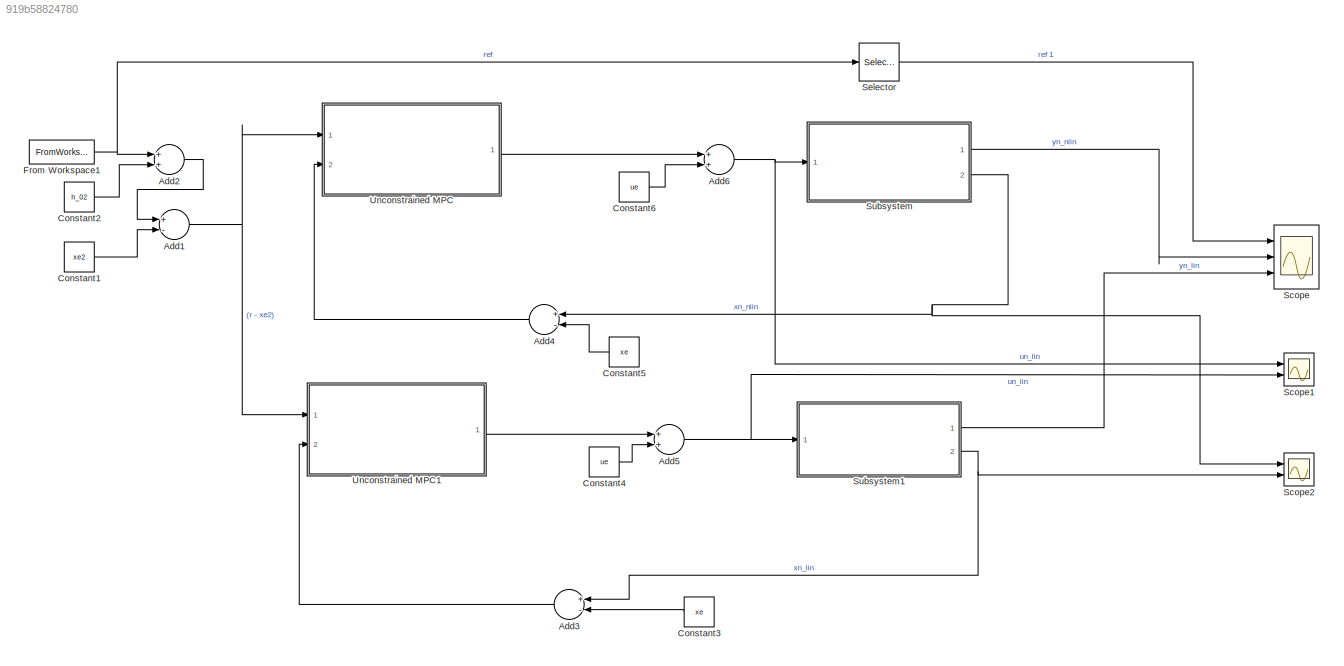
MODEL slx_919b58824780
KIND model
CONFIG AbsTol = auto
CONFIG EnableMultiTasking = off
CONFIG FixedStep = auto
CONFIG MaxStep = auto
CONFIG MinStep = auto
CONFIG RelTol = 1e-3
CONFIG SampleTimeConstraint = Unconstrained
CONFIG Solver = VariableStepAuto
CONFIG SolverName = VariableStepAuto
CONFIG StartTime = 0.0
CONFIG StopTime = time_end
BLOCK [Sum] Add1
  InputSameDT = off
  Inputs = +-
  OutDataTypeStr = Inherit: Inherit via internal rule
  Ports = [2, 1]
  SaturateOnIntegerOverflow = off
BLOCK [Sum] Add2
  InputSameDT = off
  OutDataTypeStr = Inherit: Inherit via internal rule
  Ports = [2, 1]
  SaturateOnIntegerOverflow = off
BLOCK [Sum] Add3
  InputSameDT = off
  Inputs = +-
  OutDataTypeStr = Inherit: Inherit via internal rule
  Ports = [2, 1]
  SaturateOnIntegerOverflow = off
BLOCK [Sum] Add4
  InputSameDT = off
  Inputs = +-
  OutDataTypeStr = Inherit: Inherit via internal rule
  Ports = [2, 1]
  SaturateOnIntegerOverflow = off
BLOCK [Sum] Add5
  InputSameDT = off
  OutDataTypeStr = Inherit: Inherit via internal rule
  Ports = [2, 1]
  SaturateOnIntegerOverflow = off
BLOCK [Sum] Add6
  InputSameDT = off
  OutDataTypeStr = Inherit: Inherit via internal rule
  Ports = [2, 1]
  SaturateOnIntegerOverflow = off
BLOCK [Constant] Constant1
  Value = xe2
BLOCK [Constant] Constant2
  Value = h_02
BLOCK [Constant] Constant3
  Value = xe
BLOCK [Constant] Constant4
  Value = ue
BLOCK [Constant] Constant5
  Value = xe
BLOCK [Constant] Constant6
  Value = ue
BLOCK [FromWorkspace] From Workspace1
  SampleTime = 0
  VariableName = r
  ZeroCross = on
BLOCK [Scope] Scope
  Floating = off
  NumInputPorts = 3
  Ports = [3]
  ScopeSpecificationString = Simulink.scopes.TimeScopeBlockCfg('CurrentConfiguration', extmgr.ConfigurationSet(extmgr.Configuration('Core','General UI',true),extmgr.Configuration('Core','Source UI',true),extmgr.Configuration('Sources','WiredSimulink',true),extmgr.Configuration('Visuals','Time Domain',true,'SerializedDisplays',{struct('MinYLimReal','-1.00053','MaxYLimReal','9.0048','YLabelReal','','MinYLimMag','0.00000','MaxYL...<+1439ch>
BLOCK [Scope] Scope1
  Floating = off
  NumInputPorts = 2
  Ports = [2]
  ScopeSpecificationString = Simulink.scopes.TimeScopeBlockCfg('CurrentConfiguration', extmgr.ConfigurationSet(extmgr.Configuration('Core','General UI',true),extmgr.Configuration('Core','Source UI',true),extmgr.Configuration('Sources','WiredSimulink',true,'DataLoggingVariableName','ScopeData1'),extmgr.Configuration('Visuals','Time Domain',true,'SerializedDisplays',{struct('MinYLimReal','-35.02568','MaxYLimReal','116.60425','Y...<+1441ch>
BLOCK [Scope] Scope2
  Floating = off
  NumInputPorts = 2
  Ports = [2]
  ScopeSpecificationString = Simulink.scopes.TimeScopeBlockCfg('CurrentConfiguration', extmgr.ConfigurationSet(extmgr.Configuration('Core','General UI',true),extmgr.Configuration('Core','Source UI',true),extmgr.Configuration('Sources','WiredSimulink',true,'DataLoggingVariableName','ScopeData1'),extmgr.Configuration('Visuals','Time Domain',true,'SerializedDisplays',{struct('MinYLimReal','-7.04854','MaxYLimReal','63.41934','YLa...<+1448ch>
BLOCK [Selector] Selector
  IndexOptions = Index vector (dialog)
  Indices = [1]
  InputPortWidth = Np
  OutputSizes = 1
  Ports = [1, 1]
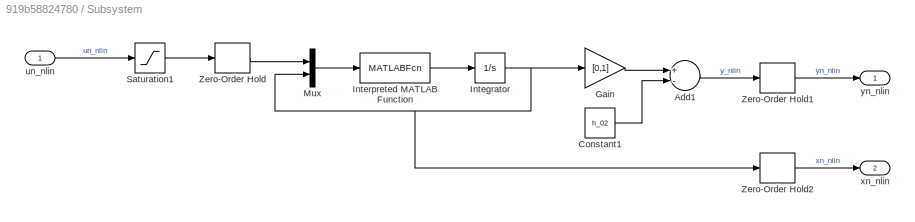
BLOCK [SubSystem] Subsystem
  Ports = [1, 2]
  RequestExecContextInheritance = off
BLOCK [Sum] Subsystem/Add1
  InputSameDT = off
  Inputs = +-
  OutDataTypeStr = Inherit: Inherit via internal rule
  Ports = [2, 1]
  SaturateOnIntegerOverflow = off
BLOCK [Constant] Subsystem/Constant1
  Value = h_02
BLOCK [Gain] Subsystem/Gain
  Gain = [0,1]
  Multiplication = Matrix(K*u)
  OutDataTypeStr = Inherit: Inherit via internal rule
  ParamDataTypeStr = Inherit: Inherit via internal rule
  SaturateOnIntegerOverflow = off
BLOCK [Integrator] Subsystem/Integrator
  InitialCondition = [h_01;h_02]
  Ports = [1, 1]
BLOCK [MATLABFcn] Subsystem/Interpreted MATLAB Function
  MATLABFcn = nonlinear_2_tank_model_function_discrete
  Ports = [1, 1]
BLOCK [Mux] Subsystem/Mux
  DisplayOption = bar
  Inputs = 2
  Ports = [2, 1]
BLOCK [Saturate] Subsystem/Saturation1
  InputPortMap = u0
  LowerLimit = 0
  Ports = [1, 1]
  UpperLimit = 5
BLOCK [ZeroOrderHold] Subsystem/Zero-Order Hold
  SampleTime = 0.5
BLOCK [ZeroOrderHold] Subsystem/Zero-Order Hold1
  SampleTime = 0.5
BLOCK [ZeroOrderHold] Subsystem/Zero-Order Hold2
  SampleTime = 0.5
BLOCK [Inport] Subsystem/un_nlin
  IconDisplay = Port number
BLOCK [Outport] Subsystem/xn_nlin
  IconDisplay = Port number
  Port = 2
BLOCK [Outport] Subsystem/yn_nlin
  IconDisplay = Port number
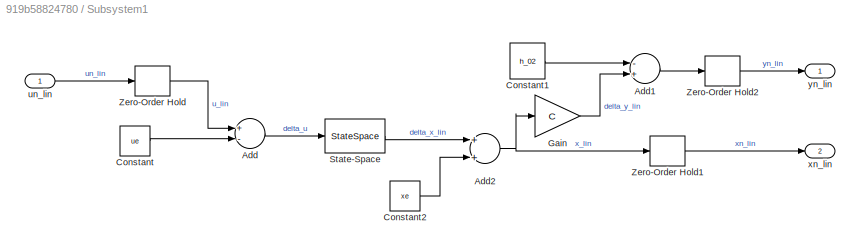
BLOCK [SubSystem] Subsystem1
  Ports = [1, 2]
  RequestExecContextInheritance = off
BLOCK [Sum] Subsystem1/Add
  InputSameDT = off
  Inputs = +-
  OutDataTypeStr = Inherit: Inherit via internal rule
  Ports = [2, 1]
  SaturateOnIntegerOverflow = off
BLOCK [Sum] Subsystem1/Add1
  InputSameDT = off
  Inputs = -+
  OutDataTypeStr = Inherit: Inherit via internal rule
  Ports = [2, 1]
  SaturateOnIntegerOverflow = off
BLOCK [Sum] Subsystem1/Add2
  InputSameDT = off
  OutDataTypeStr = Inherit: Inherit via internal rule
  Ports = [2, 1]
  SaturateOnIntegerOverflow = off
BLOCK [Constant] Subsystem1/Constant
  Value = ue
BLOCK [Constant] Subsystem1/Constant1
  Value = h_02
BLOCK [Constant] Subsystem1/Constant2
  Value = xe
BLOCK [Gain] Subsystem1/Gain
  Gain = C
  Multiplication = Matrix(K*u)
  OutDataTypeStr = Inherit: Inherit via internal rule
  ParamDataTypeStr = Inherit: Inherit via internal rule
  SaturateOnIntegerOverflow = off
BLOCK [StateSpace] Subsystem1/State-Space
  A = A
  B = B
  C = [[1,0];[0,1]]
  D = [[0,0];[0,0]]
  InitialCondition = [h_01;h_02] - xe
  Ports = [1, 1]
BLOCK [ZeroOrderHold] Subsystem1/Zero-Order Hold
  SampleTime = -1
BLOCK [ZeroOrderHold] Subsystem1/Zero-Order Hold1
  SampleTime = -1
BLOCK [ZeroOrderHold] Subsystem1/Zero-Order Hold2
  SampleTime = -1
BLOCK [Inport] Subsystem1/un_lin
  IconDisplay = Port number
BLOCK [Outport] Subsystem1/xn_lin
  IconDisplay = Port number
  Port = 2
BLOCK [Outport] Subsystem1/yn_lin
  IconDisplay = Port number
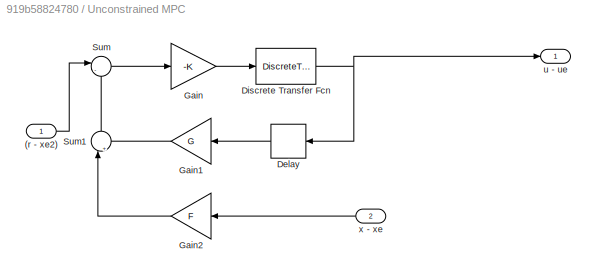
BLOCK [SubSystem] Unconstrained MPC
  Ports = [2, 1]
  RequestExecContextInheritance = off
BLOCK [Inport] Unconstrained MPC/(r - xe2)
  IconDisplay = Port number
BLOCK [Delay] Unconstrained MPC/Delay
  DelayLength = 1
  InputPortMap = u0
  Ports = [1, 1]
BLOCK [DiscreteTransferFcn] Unconstrained MPC/Discrete Transfer Fcn
  Denominator = [1 -1]
  InputPortMap = u0
  Numerator = [1 0]
  Ports = [1, 1]
  SampleTime = 0.5
BLOCK [Gain] Unconstrained MPC/Gain
  Gain = -K
  Multiplication = Matrix(K*u)
  OutDataTypeStr = Inherit: Inherit via internal rule
  ParamDataTypeStr = Inherit: Inherit via internal rule
  SaturateOnIntegerOverflow = off
BLOCK [Gain] Unconstrained MPC/Gain1
  Gain = G
  Multiplication = Matrix(K*u)
  OutDataTypeStr = Inherit: Inherit via internal rule
  ParamDataTypeStr = Inherit: Inherit via internal rule
  SaturateOnIntegerOverflow = off
BLOCK [Gain] Unconstrained MPC/Gain2
  Gain = F
  Multiplication = Matrix(K*u)
  OutDataTypeStr = Inherit: Inherit via internal rule
  ParamDataTypeStr = Inherit: Inherit via internal rule
  SaturateOnIntegerOverflow = off
BLOCK [Sum] Unconstrained MPC/Sum
  IconShape = round
  InputSameDT = off
  Inputs = |-+
  OutDataTypeStr = Inherit: Inherit via internal rule
  Ports = [2, 1]
  SaturateOnIntegerOverflow = off
BLOCK [Sum] Unconstrained MPC/Sum1
  IconShape = round
  InputSameDT = off
  Inputs = |++
  OutDataTypeStr = Inherit: Inherit via internal rule
  Ports = [2, 1]
  SaturateOnIntegerOverflow = off
BLOCK [Outport] Unconstrained MPC/u - ue
  IconDisplay = Port number
BLOCK [Inport] Unconstrained MPC/x - xe
  IconDisplay = Port number
  Port = 2
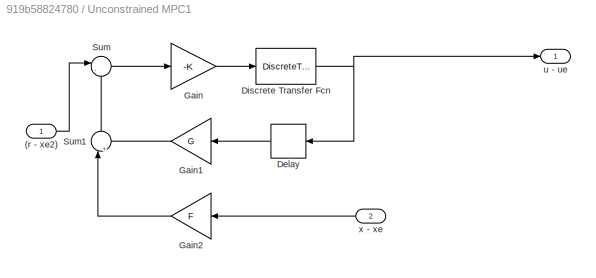
BLOCK [SubSystem] Unconstrained MPC1
  Ports = [2, 1]
  RequestExecContextInheritance = off
BLOCK [Inport] Unconstrained MPC1/(r - xe2)
  IconDisplay = Port number
BLOCK [Delay] Unconstrained MPC1/Delay
  DelayLength = 1
  InputPortMap = u0
  Ports = [1, 1]
BLOCK [DiscreteTransferFcn] Unconstrained MPC1/Discrete Transfer Fcn
  Denominator = [1 -1]
  InputPortMap = u0
  Numerator = [1 0]
  Ports = [1, 1]
  SampleTime = 0.5
BLOCK [Gain] Unconstrained MPC1/Gain
  Gain = -K
  Multiplication = Matrix(K*u)
  OutDataTypeStr = Inherit: Inherit via internal rule
  ParamDataTypeStr = Inherit: Inherit via internal rule
  SaturateOnIntegerOverflow = off
BLOCK [Gain] Unconstrained MPC1/Gain1
  Gain = G
  Multiplication = Matrix(K*u)
  OutDataTypeStr = Inherit: Inherit via internal rule
  ParamDataTypeStr = Inherit: Inherit via internal rule
  SaturateOnIntegerOverflow = off
BLOCK [Gain] Unconstrained MPC1/Gain2
  Gain = F
  Multiplication = Matrix(K*u)
  OutDataTypeStr = Inherit: Inherit via internal rule
  ParamDataTypeStr = Inherit: Inherit via internal rule
  SaturateOnIntegerOverflow = off
BLOCK [Sum] Unconstrained MPC1/Sum
  IconShape = round
  InputSameDT = off
  Inputs = |-+
  OutDataTypeStr = Inherit: Inherit via internal rule
  Ports = [2, 1]
  SaturateOnIntegerOverflow = off
BLOCK [Sum] Unconstrained MPC1/Sum1
  IconShape = round
  InputSameDT = off
  Inputs = |++
  OutDataTypeStr = Inherit: Inherit via internal rule
  Ports = [2, 1]
  SaturateOnIntegerOverflow = off
BLOCK [Outport] Unconstrained MPC1/u - ue
  IconDisplay = Port number
BLOCK [Inport] Unconstrained MPC1/x - xe
  IconDisplay = Port number
  Port = 2
NET Add1:1 -> Unconstrained MPC1:1, Unconstrained MPC:1
LINE Add2:1 -> Add1:1
LINE Add3:1 -> Unconstrained MPC1:2
LINE Add4:1 -> Unconstrained MPC:2
NET Add5:1 -> Scope1:2, Subsystem1:1
NET Add6:1 -> Scope1:1, Subsystem:1
LINE Constant1:1 -> Add1:2
LINE Constant2:1 -> Add2:2
LINE Constant3:1 -> Add3:2
LINE Constant4:1 -> Add5:2
LINE Constant5:1 -> Add4:2
LINE Constant6:1 -> Add6:2
NET From Workspace1:1 -> Add2:1, Selector:1
LINE Selector:1 -> Scope:1
LINE Subsystem/Add1:1 -> Subsystem/Zero-Order Hold1:1
LINE Subsystem/Constant1:1 -> Subsystem/Add1:2
LINE Subsystem/Gain:1 -> Subsystem/Add1:1
NET Subsystem/Integrator:1 -> Subsystem/Gain:1, Subsystem/Mux:2, Subsystem/Zero-Order Hold2:1
LINE Subsystem/Interpreted MATLAB Function:1 -> Subsystem/Integrator:1
LINE Subsystem/Mux:1 -> Subsystem/Interpreted MATLAB Function:1
LINE Subsystem/Saturation1:1 -> Subsystem/Zero-Order Hold:1
LINE Subsystem/Zero-Order Hold1:1 -> Subsystem/yn_nlin:1
LINE Subsystem/Zero-Order Hold2:1 -> Subsystem/xn_nlin:1
LINE Subsystem/Zero-Order Hold:1 -> Subsystem/Mux:1
LINE Subsystem/un_nlin:1 -> Subsystem/Saturation1:1
LINE Subsystem1/Add1:1 -> Subsystem1/Zero-Order Hold2:1
NET Subsystem1/Add2:1 -> Subsystem1/Gain:1, Subsystem1/Zero-Order Hold1:1
LINE Subsystem1/Add:1 -> Subsystem1/State-Space:1
LINE Subsystem1/Constant1:1 -> Subsystem1/Add1:1
LINE Subsystem1/Constant2:1 -> Subsystem1/Add2:2
LINE Subsystem1/Constant:1 -> Subsystem1/Add:2
LINE Subsystem1/Gain:1 -> Subsystem1/Add1:2
LINE Subsystem1/State-Space:1 -> Subsystem1/Add2:1
LINE Subsystem1/Zero-Order Hold1:1 -> Subsystem1/xn_lin:1
LINE Subsystem1/Zero-Order Hold2:1 -> Subsystem1/yn_lin:1
LINE Subsystem1/Zero-Order Hold:1 -> Subsystem1/Add:1
LINE Subsystem1/un_lin:1 -> Subsystem1/Zero-Order Hold:1
LINE Subsystem1:1 -> Scope:3
NET Subsystem1:2 -> Add3:1, Scope2:2
LINE Subsystem:1 -> Scope:2
NET Subsystem:2 -> Add4:1, Scope2:1
LINE Unconstrained MPC/(r - xe2):1 -> Unconstrained MPC/Sum:1
LINE Unconstrained MPC/Delay:1 -> Unconstrained MPC/Gain1:1
NET Unconstrained MPC/Discrete Transfer Fcn:1 -> Unconstrained MPC/Delay:1, Unconstrained MPC/u - ue:1
LINE Unconstrained MPC/Gain1:1 -> Unconstrained MPC/Sum1:2
LINE Unconstrained MPC/Gain2:1 -> Unconstrained MPC/Sum1:1
LINE Unconstrained MPC/Gain:1 -> Unconstrained MPC/Discrete Transfer Fcn:1
LINE Unconstrained MPC/Sum1:1 -> Unconstrained MPC/Sum:2
LINE Unconstrained MPC/Sum:1 -> Unconstrained MPC/Gain:1
LINE Unconstrained MPC/x - xe:1 -> Unconstrained MPC/Gain2:1
LINE Unconstrained MPC1/(r - xe2):1 -> Unconstrained MPC1/Sum:1
LINE Unconstrained MPC1/Delay:1 -> Unconstrained MPC1/Gain1:1
NET Unconstrained MPC1/Discrete Transfer Fcn:1 -> Unconstrained MPC1/Delay:1, Unconstrained MPC1/u - ue:1
LINE Unconstrained MPC1/Gain1:1 -> Unconstrained MPC1/Sum1:2
LINE Unconstrained MPC1/Gain2:1 -> Unconstrained MPC1/Sum1:1
LINE Unconstrained MPC1/Gain:1 -> Unconstrained MPC1/Discrete Transfer Fcn:1
LINE Unconstrained MPC1/Sum1:1 -> Unconstrained MPC1/Sum:2
LINE Unconstrained MPC1/Sum:1 -> Unconstrained MPC1/Gain:1
LINE Unconstrained MPC1/x - xe:1 -> Unconstrained MPC1/Gain2:1
LINE Unconstrained MPC1:1 -> Add5:1
LINE Unconstrained MPC:1 -> Add6:1
note: NET lines group one-source signal fan-out (src -> all destinations, sorted); 1:1 wires keep LINE
